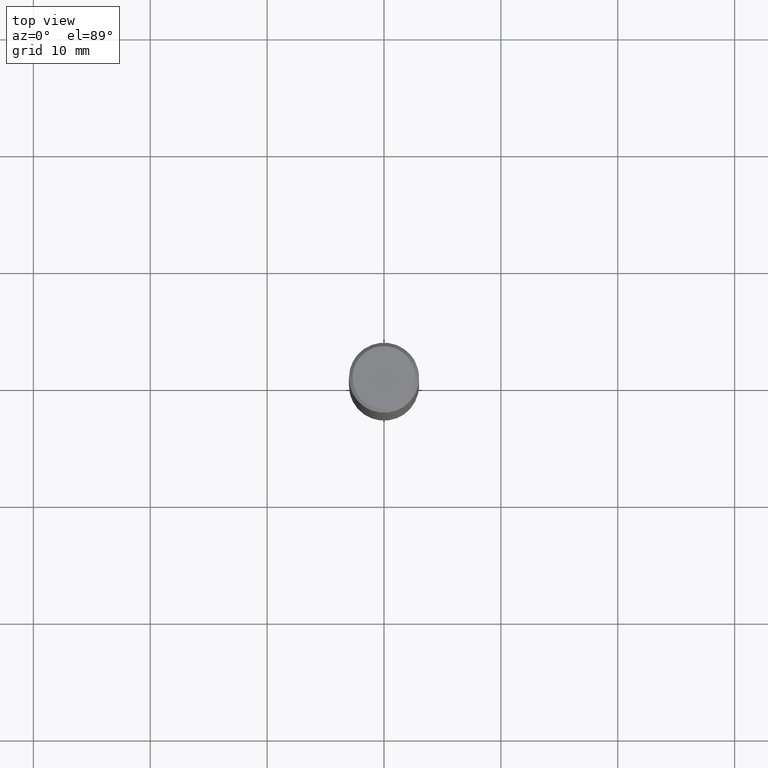
[diagram: clean part render]
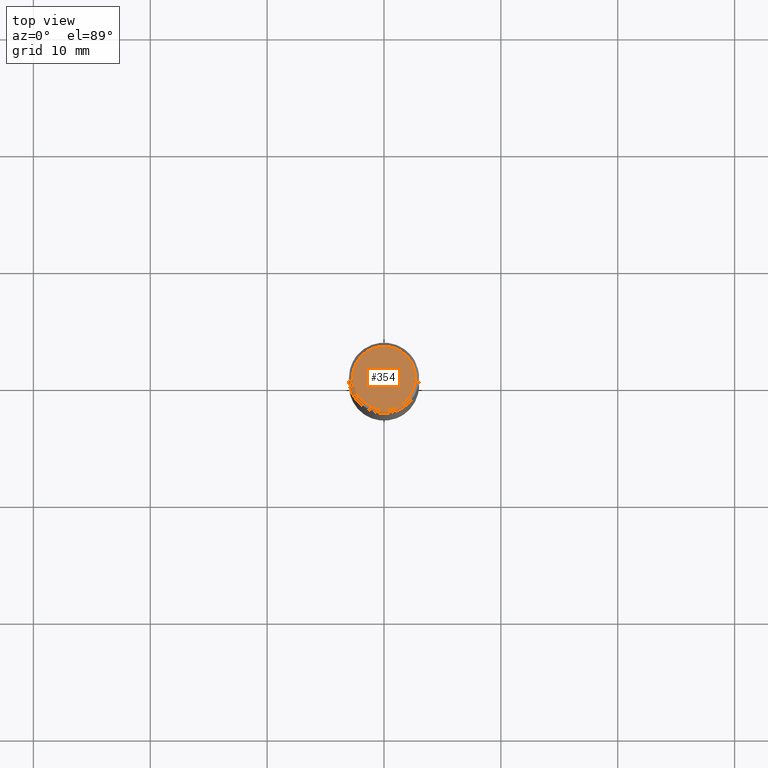
[diagram: same view with one face highlighted and labeled with its STEP entity id]
A machine part, top view. The second image highlights one B-rep face of the part: STEP entity #354.
In plain terms, the highlighted planar face has unit normal (-0, -0, 1).
Its self-contained STEP definition (entity closure, byte-faithful):
#314 = VERTEX_POINT('', #315);
#315 = CARTESIAN_POINT('', (-2.7, 1.65327317884893E-16, 0.));
#321 = EDGE_CURVE('', #314, #314, #322, .T.);
#322 = CIRCLE('', #323, 2.7);
#323 = AXIS2_PLACEMENT_3D('', #324, #325, #326);
#324 = CARTESIAN_POINT('', (6.74700668366753E-80, -4.13135006948962E-96, 0.));
#325 = DIRECTION('', (3.74939945665464E-33, 6.12323399573677E-17, -1.));
#326 = DIRECTION('', (-1., 6.12323399573677E-17, 0.));
#354 = ADVANCED_FACE('', (#355), #358, .T.);
#355 = FACE_OUTER_BOUND('', #356, .T.);
#356 = EDGE_LOOP('', (#357));
#357 = ORIENTED_EDGE('', *, *, #321, .F.);
#358 = PLANE('', #359);
#359 = AXIS2_PLACEMENT_3D('', #360, #361, #362);
#360 = CARTESIAN_POINT('', (4.20021428024809, -4.20021428024809, 1.07962619604318E-14));
#361 = DIRECTION('', (-2.63163976207445E-15, -6.12323399573677E-17, 1.));
#362 = DIRECTION('', (0., 1., 6.12323399573677E-17));